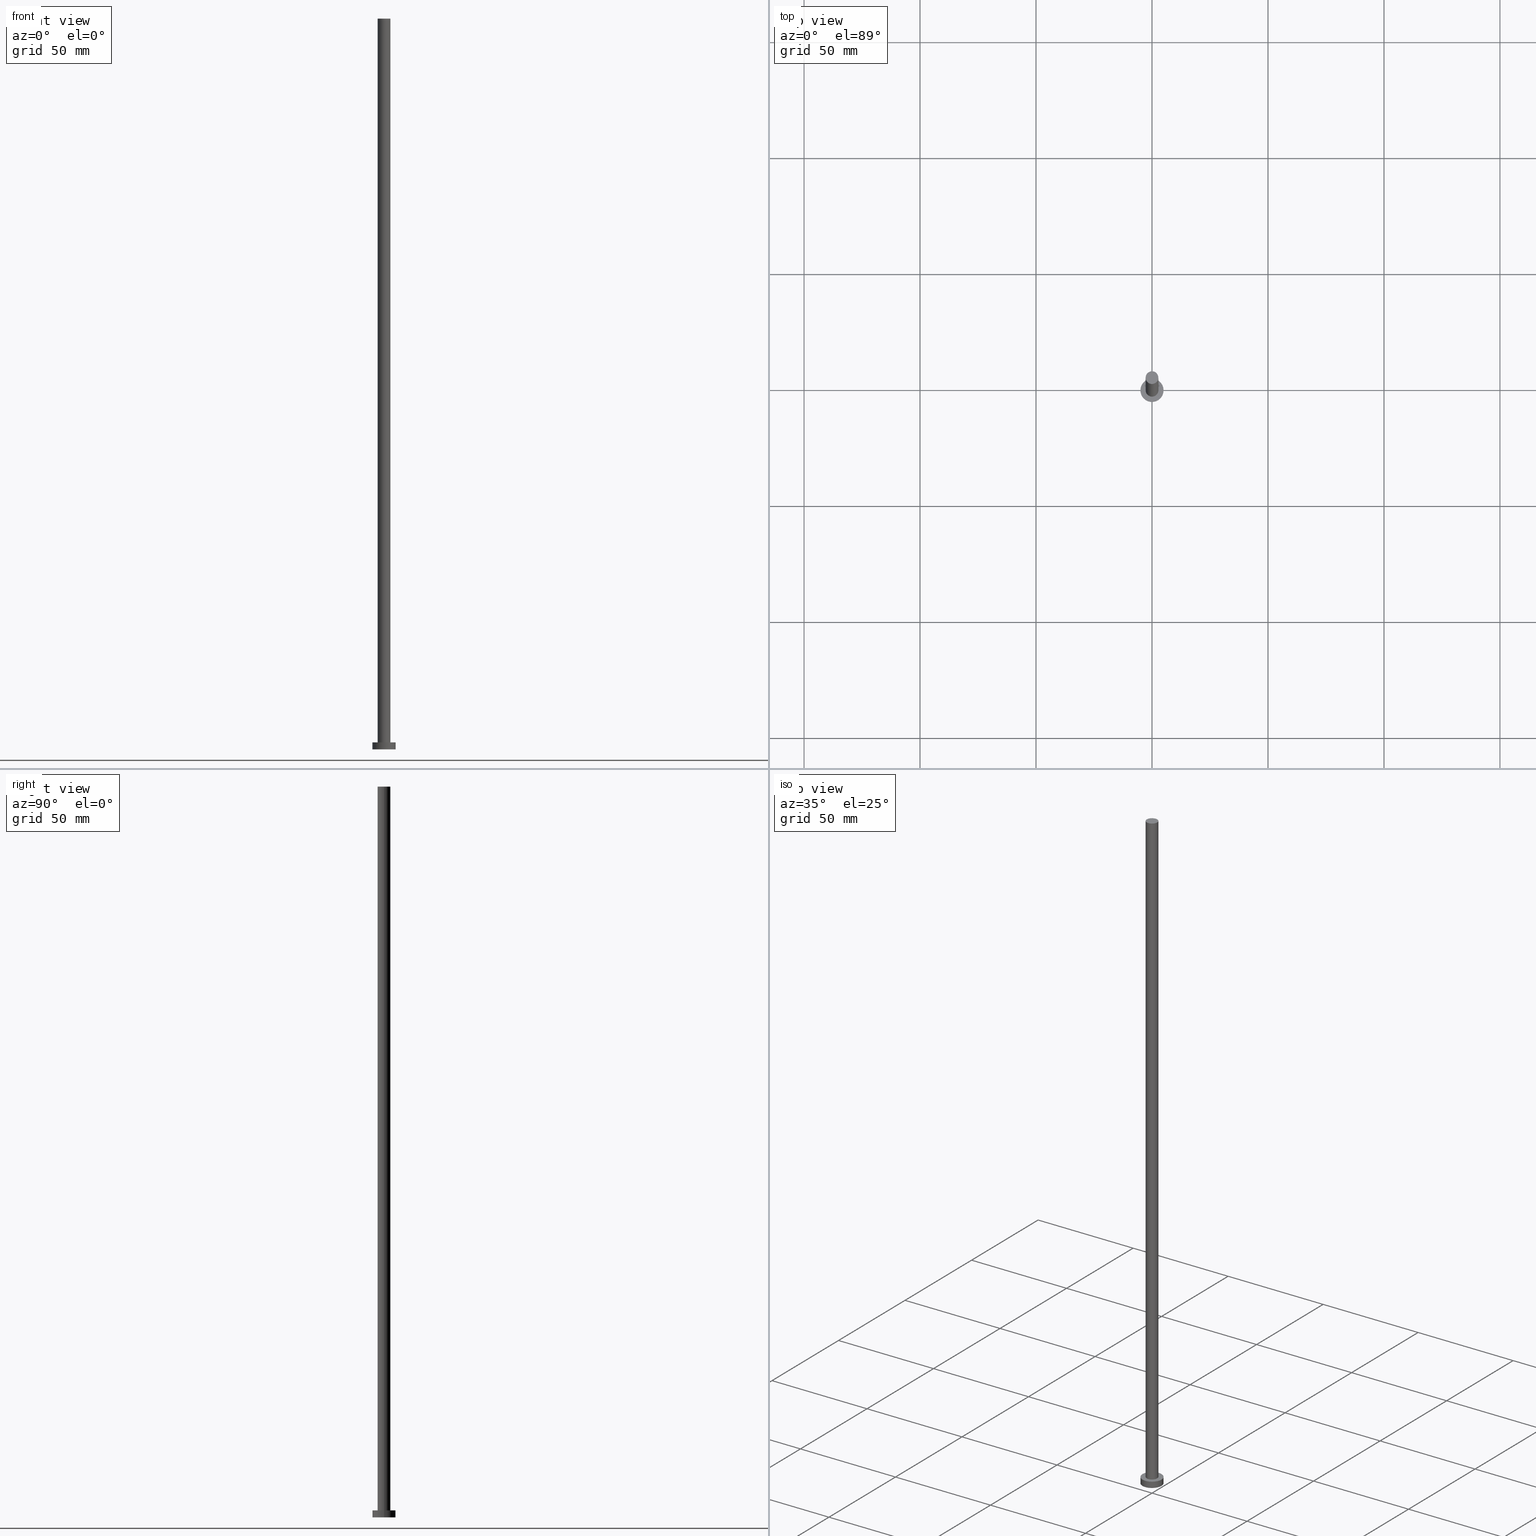
[diagram: canonical four-view strip — front | top / right | iso, engineering-drawing reading convention]
A machine part, canonical four-view strip (front | top / right | iso — engineering-drawing reading convention). The complete STEP part file that produces these views, byte-faithful:
ISO-10303-21;
HEADER;
FILE_DESCRIPTION (( 'STEP AP203' ),
    '1' );
FILE_NAME ('250e.STEP',
    '2023-02-13T15:23:35',
    ( '' ),
    ( '' ),
    'SwSTEP 2.0',
    'SolidWorks 2019',
    '' );
FILE_SCHEMA (( 'CONFIG_CONTROL_DESIGN' ));
ENDSEC;

DATA;
#1 = PRODUCT_RELATED_PRODUCT_CATEGORY ( 'detail', '', ( #173 ) ) ;
#2 = APPLICATION_PROTOCOL_DEFINITION ( 'international standard', 'config_control_design', 1994, #7 ) ;
#3 = EDGE_LOOP ( 'NONE', ( #6, #104 ) ) ;
#4 = AXIS2_PLACEMENT_3D ( 'NONE', #174, #47, #106 ) ;
#5 = ORIENTED_EDGE ( 'NONE', *, *, #97, .T. ) ;
#6 = ORIENTED_EDGE ( 'NONE', *, *, #120, .T. ) ;
#7 = APPLICATION_CONTEXT ( 'configuration controlled 3d designs of mechanical parts and assemblies' ) ;
#8 = LINE ( 'NONE', #129, #107 ) ;
#9 = CARTESIAN_POINT ( 'NONE',  ( 0.000000000000000000, 0.000000000000000000, 3.000000000000000000 ) ) ;
#10 = CARTESIAN_POINT ( 'NONE',  ( 0.000000000000000000, 0.000000000000000000, 3.000000000000000000 ) ) ;
#11 = ORIENTED_EDGE ( 'NONE', *, *, #28, .F. ) ;
#12 = CALENDAR_DATE ( 2023, 13, 2 ) ;
#13 = CYLINDRICAL_SURFACE ( 'NONE', #138, 5.000000000000000000 ) ;
#14 = CYLINDRICAL_SURFACE ( 'NONE', #41, 2.750000000000000000 ) ;
#15 = APPROVAL_ROLE ( '' ) ;
#16 = CALENDAR_DATE ( 2023, 13, 2 ) ;
#17 = LINE ( 'NONE', #57, #217 ) ;
#18 = ORIENTED_EDGE ( 'NONE', *, *, #112, .F. ) ;
#19 = EDGE_CURVE ( 'NONE', #186, #23, #108, .T. ) ;
#20 = ORIENTED_EDGE ( 'NONE', *, *, #19, .F. ) ;
#21 = CIRCLE ( 'NONE', #204, 5.000000000000000000 ) ;
#22 = DIRECTION ( 'NONE',  ( 0.000000000000000000, 0.000000000000000000, 1.000000000000000000 ) ) ;
#23 = VERTEX_POINT ( 'NONE', #147 ) ;
#24 = DIRECTION ( 'NONE',  ( 0.000000000000000000, 0.000000000000000000, 1.000000000000000000 ) ) ;
#25 = ORIENTED_EDGE ( 'NONE', *, *, #145, .T. ) ;
#26 = ORIENTED_EDGE ( 'NONE', *, *, #19, .T. ) ;
#27 = AXIS2_PLACEMENT_3D ( 'NONE', #10, #90, #179 ) ;
#28 = EDGE_CURVE ( 'NONE', #219, #144, #243, .T. ) ;
#29 = CARTESIAN_POINT ( 'NONE',  ( 5.000000000000000000, 6.123233995736766282E-16, 0.000000000000000000 ) ) ;
#30 = APPROVAL ( #33, 'NEUR�EN�' ) ;
#31 = FACE_BOUND ( 'NONE', #79, .T. ) ;
#32 = CARTESIAN_POINT ( 'NONE',  ( -2.750000000000000000, 0.000000000000000000, 315.0000000000000000 ) ) ;
#33 = APPROVAL_STATUS ( 'not_yet_approved' ) ;
#34 = CARTESIAN_POINT ( 'NONE',  ( 2.750000000000000000, 3.367778697655221012E-16, 3.000000000000000000 ) ) ;
#35 = PERSON_AND_ORGANIZATION_ROLE ( 'creator' ) ;
#36 = DIRECTION ( 'NONE',  ( -1.000000000000000000, 0.000000000000000000, 0.000000000000000000 ) ) ;
#37 = PERSON_AND_ORGANIZATION_ROLE ( 'creator' ) ;
#38 = ORIENTED_EDGE ( 'NONE', *, *, #133, .F. ) ;
#39 = ORIENTED_EDGE ( 'NONE', *, *, #112, .T. ) ;
#40 = CC_DESIGN_PERSON_AND_ORGANIZATION_ASSIGNMENT ( #234, #35, ( #156 ) ) ;
#41 = AXIS2_PLACEMENT_3D ( 'NONE', #166, #137, #36 ) ;
#42 = CIRCLE ( 'NONE', #71, 2.750000000000000000 ) ;
#43 = COORDINATED_UNIVERSAL_TIME_OFFSET ( 1, 0, .AHEAD. ) ;
#44 = ORIENTED_EDGE ( 'NONE', *, *, #248, .F. ) ;
#45 = DIRECTION ( 'NONE',  ( 1.000000000000000000, 0.000000000000000000, 0.000000000000000000 ) ) ;
#46 = APPLICATION_PROTOCOL_DEFINITION ( 'international standard', 'config_control_design', 1994, #150 ) ;
#47 = DIRECTION ( 'NONE',  ( 0.000000000000000000, 0.000000000000000000, 1.000000000000000000 ) ) ;
#48 = DIRECTION ( 'NONE',  ( -1.000000000000000000, 0.000000000000000000, 0.000000000000000000 ) ) ;
#49 = PERSON_AND_ORGANIZATION_ROLE ( 'design_owner' ) ;
#50 = DIRECTION ( 'NONE',  ( 0.000000000000000000, 0.000000000000000000, 1.000000000000000000 ) ) ;
#51 = CIRCLE ( 'NONE', #209, 5.000000000000000000 ) ;
#52 = CARTESIAN_POINT ( 'NONE',  ( 2.750000000000000000, 3.367778697655221012E-16, 315.0000000000000000 ) ) ;
#53 = FACE_OUTER_BOUND ( 'NONE', #62, .T. ) ;
#54 = ADVANCED_FACE ( 'NONE', ( #67 ), #69, .T. ) ;
#55 = PLANE ( 'NONE',  #155 ) ;
#56 = CC_DESIGN_PERSON_AND_ORGANIZATION_ASSIGNMENT ( #161, #201, ( #156 ) ) ;
#57 = CARTESIAN_POINT ( 'NONE',  ( 2.750000000000000000, 3.367778697655221012E-16, 315.0000000000000000 ) ) ;
#58 = CC_DESIGN_APPROVAL ( #30, ( #156 ) ) ;
#59 = EDGE_LOOP ( 'NONE', ( #18, #126, #5, #20 ) ) ;
#60 = DATE_TIME_ROLE ( 'classification_date' ) ;
#61 = COORDINATED_UNIVERSAL_TIME_OFFSET ( 1, 0, .AHEAD. ) ;
#62 = EDGE_LOOP ( 'NONE', ( #225, #177, #188, #38 ) ) ;
#63 = EDGE_CURVE ( 'NONE', #141, #144, #130, .T. ) ;
#64 = FACE_OUTER_BOUND ( 'NONE', #227, .T. ) ;
#65 = ORIENTED_EDGE ( 'NONE', *, *, #220, .F. ) ;
#66 = DIRECTION ( 'NONE',  ( -0.000000000000000000, -0.000000000000000000, -1.000000000000000000 ) ) ;
#67 = FACE_OUTER_BOUND ( 'NONE', #59, .T. ) ;
#68 = FACE_OUTER_BOUND ( 'NONE', #203, .T. ) ;
#69 = CYLINDRICAL_SURFACE ( 'NONE', #122, 2.750000000000000000 ) ;
#70 = VERTEX_POINT ( 'NONE', #52 ) ;
#71 = AXIS2_PLACEMENT_3D ( 'NONE', #9, #50, #195 ) ;
#72 = AXIS2_PLACEMENT_3D ( 'NONE', #171, #146, #152 ) ;
#73 =( GEOMETRIC_REPRESENTATION_CONTEXT ( 3 ) GLOBAL_UNCERTAINTY_ASSIGNED_CONTEXT ( ( #99 ) ) GLOBAL_UNIT_ASSIGNED_CONTEXT ( ( #117, #98, #241 ) ) REPRESENTATION_CONTEXT ( 'NONE', 'WORKASPACE' ) );
#74 = CIRCLE ( 'NONE', #27, 2.750000000000000000 ) ;
#75 = DATE_AND_TIME ( #253, #183 ) ;
#76 = COORDINATED_UNIVERSAL_TIME_OFFSET ( 1, 0, .AHEAD. ) ;
#77 = CARTESIAN_POINT ( 'NONE',  ( 0.000000000000000000, 0.000000000000000000, 0.000000000000000000 ) ) ;
#78 = PERSON_AND_ORGANIZATION_ROLE ( 'classification_officer' ) ;
#79 = EDGE_LOOP ( 'NONE', ( #100, #103 ) ) ;
#80 = PERSON_AND_ORGANIZATION ( #247, #213 ) ;
#81 = ORIENTED_EDGE ( 'NONE', *, *, #196, .T. ) ;
#82 = VECTOR ( 'NONE', #66, 1000.000000000000000 ) ;
#83 = CC_DESIGN_APPROVAL ( #178, ( #242 ) ) ;
#84 = CARTESIAN_POINT ( 'NONE',  ( -5.000000000000000000, 0.000000000000000000, 0.000000000000000000 ) ) ;
#85 = CARTESIAN_POINT ( 'NONE',  ( 5.000000000000000000, 6.123233995736766282E-16, 3.000000000000000000 ) ) ;
#86 = DIRECTION ( 'NONE',  ( -0.000000000000000000, -0.000000000000000000, -1.000000000000000000 ) ) ;
#87 = DIRECTION ( 'NONE',  ( 1.000000000000000000, 0.000000000000000000, 0.000000000000000000 ) ) ;
#88 = CIRCLE ( 'NONE', #4, 5.000000000000000000 ) ;
#89 = CARTESIAN_POINT ( 'NONE',  ( 0.000000000000000000, 0.000000000000000000, 0.000000000000000000 ) ) ;
#90 = DIRECTION ( 'NONE',  ( 0.000000000000000000, 0.000000000000000000, 1.000000000000000000 ) ) ;
#91 = DIRECTION ( 'NONE',  ( 0.000000000000000000, 0.000000000000000000, 1.000000000000000000 ) ) ;
#92 = LOCAL_TIME ( 16, 23, 35.00000000000000000, #211 ) ;
#93 = EDGE_CURVE ( 'NONE', #219, #169, #88, .T. ) ;
#94 = DIRECTION ( 'NONE',  ( 1.000000000000000000, 0.000000000000000000, -0.000000000000000000 ) ) ;
#95 = COORDINATED_UNIVERSAL_TIME_OFFSET ( 1, 0, .AHEAD. ) ;
#96 = AXIS2_PLACEMENT_3D ( 'NONE', #89, #124, #206 ) ;
#97 = EDGE_CURVE ( 'NONE', #180, #23, #42, .T. ) ;
#98 =( NAMED_UNIT ( * ) PLANE_ANGLE_UNIT ( ) SI_UNIT ( $, .RADIAN. ) );
#99 = UNCERTAINTY_MEASURE_WITH_UNIT (LENGTH_MEASURE( 1.000000000000000082E-05 ), #117, 'distance_accuracy_value', 'NONE');
#100 = ORIENTED_EDGE ( 'NONE', *, *, #145, .F. ) ;
#101 = LOCAL_TIME ( 16, 23, 35.00000000000000000, #61 ) ;
#102 = VECTOR ( 'NONE', #86, 1000.000000000000000 ) ;
#103 = ORIENTED_EDGE ( 'NONE', *, *, #97, .F. ) ;
#104 = ORIENTED_EDGE ( 'NONE', *, *, #93, .T. ) ;
#105 = CARTESIAN_POINT ( 'NONE',  ( 0.000000000000000000, 0.000000000000000000, 315.0000000000000000 ) ) ;
#106 = DIRECTION ( 'NONE',  ( 1.000000000000000000, 0.000000000000000000, 0.000000000000000000 ) ) ;
#107 = VECTOR ( 'NONE', #208, 1000.000000000000000 ) ;
#108 = LINE ( 'NONE', #172, #102 ) ;
#109 = MANIFOLD_SOLID_BREP ( 'P�idat vysunut�m3', #157 ) ;
#110 = PLANE ( 'NONE',  #189 ) ;
#111 = CARTESIAN_POINT ( 'NONE',  ( 0.000000000000000000, 0.000000000000000000, 3.000000000000000000 ) ) ;
#112 = EDGE_CURVE ( 'NONE', #70, #186, #238, .T. ) ;
#113 = DATE_AND_TIME ( #16, #101 ) ;
#114 = PRODUCT_DEFINITION_SHAPE ( 'NONE', 'NONE',  #228 ) ;
#115 = DIRECTION ( 'NONE',  ( 1.000000000000000000, 0.000000000000000000, 0.000000000000000000 ) ) ;
#116 = DATE_AND_TIME ( #218, #176 ) ;
#117 =( LENGTH_UNIT ( ) NAMED_UNIT ( * ) SI_UNIT ( .MILLI., .METRE. ) );
#118 = DESIGN_CONTEXT ( 'detailed design', #7, 'design' ) ;
#119 = ORIENTED_EDGE ( 'NONE', *, *, #63, .T. ) ;
#120 = EDGE_CURVE ( 'NONE', #169, #219, #21, .T. ) ;
#121 = DATE_AND_TIME ( #12, #92 ) ;
#122 = AXIS2_PLACEMENT_3D ( 'NONE', #105, #226, #48 ) ;
#123 = CYLINDRICAL_SURFACE ( 'NONE', #72, 5.000000000000000000 ) ;
#124 = DIRECTION ( 'NONE',  ( 0.000000000000000000, 0.000000000000000000, 1.000000000000000000 ) ) ;
#125 = CARTESIAN_POINT ( 'NONE',  ( 0.000000000000000000, 0.000000000000000000, 0.000000000000000000 ) ) ;
#126 = ORIENTED_EDGE ( 'NONE', *, *, #220, .T. ) ;
#127 = ADVANCED_FACE ( 'NONE', ( #68 ), #148, .F. ) ;
#128 = MECHANICAL_CONTEXT ( 'NONE', #150, 'mechanical' ) ;
#129 = CARTESIAN_POINT ( 'NONE',  ( -5.000000000000000000, 0.000000000000000000, 3.000000000000000000 ) ) ;
#130 = CIRCLE ( 'NONE', #244, 5.000000000000000000 ) ;
#131 = CARTESIAN_POINT ( 'NONE',  ( -5.000000000000000000, 0.000000000000000000, 3.000000000000000000 ) ) ;
#132 = CARTESIAN_POINT ( 'NONE',  ( 0.000000000000000000, 0.000000000000000000, 315.0000000000000000 ) ) ;
#133 = EDGE_CURVE ( 'NONE', #169, #141, #8, .T. ) ;
#134 = CC_DESIGN_APPROVAL ( #136, ( #228 ) ) ;
#135 = AXIS2_PLACEMENT_3D ( 'NONE', #153, #151, #193 ) ;
#136 = APPROVAL ( #143, 'NEUR�EN�' ) ;
#137 = DIRECTION ( 'NONE',  ( -0.000000000000000000, -0.000000000000000000, -1.000000000000000000 ) ) ;
#138 = AXIS2_PLACEMENT_3D ( 'NONE', #111, #198, #251 ) ;
#139 = ORIENTED_EDGE ( 'NONE', *, *, #120, .F. ) ;
#140 = PERSON_AND_ORGANIZATION ( #247, #213 ) ;
#141 = VERTEX_POINT ( 'NONE', #84 ) ;
#142 = CC_DESIGN_DATE_AND_TIME_ASSIGNMENT ( #113, #215, ( #228 ) ) ;
#143 = APPROVAL_STATUS ( 'not_yet_approved' ) ;
#144 = VERTEX_POINT ( 'NONE', #29 ) ;
#145 = EDGE_CURVE ( 'NONE', #23, #180, #74, .T. ) ;
#146 = DIRECTION ( 'NONE',  ( -0.000000000000000000, -0.000000000000000000, -1.000000000000000000 ) ) ;
#147 = CARTESIAN_POINT ( 'NONE',  ( -2.750000000000000000, 0.000000000000000000, 3.000000000000000000 ) ) ;
#148 = PLANE ( 'NONE',  #233 ) ;
#149 = SHAPE_DEFINITION_REPRESENTATION ( #114, #154 ) ;
#150 = APPLICATION_CONTEXT ( 'configuration controlled 3d designs of mechanical parts and assemblies' ) ;
#151 = DIRECTION ( 'NONE',  ( 0.000000000000000000, 0.000000000000000000, 1.000000000000000000 ) ) ;
#152 = DIRECTION ( 'NONE',  ( -1.000000000000000000, 0.000000000000000000, 0.000000000000000000 ) ) ;
#153 = CARTESIAN_POINT ( 'NONE',  ( 0.000000000000000000, 0.000000000000000000, 315.0000000000000000 ) ) ;
#154 = ADVANCED_BREP_SHAPE_REPRESENTATION ( '250e', ( #109, #96 ), #73 ) ;
#155 = AXIS2_PLACEMENT_3D ( 'NONE', #132, #212, #94 ) ;
#156 = PRODUCT_DEFINITION_FORMATION_WITH_SPECIFIED_SOURCE ( 'LIBOVOLN�', '', #173, .NOT_KNOWN. ) ;
#157 = CLOSED_SHELL ( 'NONE', ( #54, #182, #164, #170, #127, #192, #184 ) ) ;
#158 = CC_DESIGN_DATE_AND_TIME_ASSIGNMENT ( #116, #60, ( #242 ) ) ;
#159 = APPROVAL_DATE_TIME ( #75, #30 ) ;
#160 = CARTESIAN_POINT ( 'NONE',  ( 0.000000000000000000, 0.000000000000000000, 315.0000000000000000 ) ) ;
#161 = PERSON_AND_ORGANIZATION ( #247, #213 ) ;
#162 = DIRECTION ( 'NONE',  ( 0.000000000000000000, 0.000000000000000000, 1.000000000000000000 ) ) ;
#163 = CC_DESIGN_SECURITY_CLASSIFICATION ( #242, ( #156 ) ) ;
#164 = ADVANCED_FACE ( 'NONE', ( #64 ), #123, .T. ) ;
#165 = CC_DESIGN_PERSON_AND_ORGANIZATION_ASSIGNMENT ( #254, #78, ( #242 ) ) ;
#166 = CARTESIAN_POINT ( 'NONE',  ( 0.000000000000000000, 0.000000000000000000, 315.0000000000000000 ) ) ;
#167 = APPROVAL_DATE_TIME ( #205, #178 ) ;
#168 = PERSON_AND_ORGANIZATION ( #247, #213 ) ;
#169 = VERTEX_POINT ( 'NONE', #131 ) ;
#170 = ADVANCED_FACE ( 'NONE', ( #31, #210 ), #110, .T. ) ;
#171 = CARTESIAN_POINT ( 'NONE',  ( 0.000000000000000000, 0.000000000000000000, 3.000000000000000000 ) ) ;
#172 = CARTESIAN_POINT ( 'NONE',  ( -2.750000000000000000, 0.000000000000000000, 315.0000000000000000 ) ) ;
#173 = PRODUCT ( '250e', '250e', '', ( #128 ) ) ;
#174 = CARTESIAN_POINT ( 'NONE',  ( 0.000000000000000000, 0.000000000000000000, 3.000000000000000000 ) ) ;
#175 = APPROVAL_ROLE ( '' ) ;
#176 = LOCAL_TIME ( 16, 23, 35.00000000000000000, #76 ) ;
#177 = ORIENTED_EDGE ( 'NONE', *, *, #28, .T. ) ;
#178 = APPROVAL ( #221, 'NEUR�EN�' ) ;
#179 = DIRECTION ( 'NONE',  ( 1.000000000000000000, 0.000000000000000000, 0.000000000000000000 ) ) ;
#180 = VERTEX_POINT ( 'NONE', #34 ) ;
#181 = DIRECTION ( 'NONE',  ( 0.000000000000000000, 0.000000000000000000, 1.000000000000000000 ) ) ;
#182 = ADVANCED_FACE ( 'NONE', ( #53 ), #13, .T. ) ;
#183 = LOCAL_TIME ( 16, 23, 35.00000000000000000, #95 ) ;
#184 = ADVANCED_FACE ( 'NONE', ( #232 ), #55, .T. ) ;
#185 = SECURITY_CLASSIFICATION_LEVEL ( 'unclassified' ) ;
#186 = VERTEX_POINT ( 'NONE', #32 ) ;
#187 = CALENDAR_DATE ( 2023, 13, 2 ) ;
#188 = ORIENTED_EDGE ( 'NONE', *, *, #248, .T. ) ;
#189 = AXIS2_PLACEMENT_3D ( 'NONE', #216, #181, #214 ) ;
#190 = DIRECTION ( 'NONE',  ( 1.000000000000000000, 0.000000000000000000, -0.000000000000000000 ) ) ;
#191 = EDGE_LOOP ( 'NONE', ( #65, #249, #26, #25 ) ) ;
#192 = ADVANCED_FACE ( 'NONE', ( #199 ), #14, .T. ) ;
#193 = DIRECTION ( 'NONE',  ( 1.000000000000000000, 0.000000000000000000, 0.000000000000000000 ) ) ;
#194 = AXIS2_PLACEMENT_3D ( 'NONE', #160, #22, #115 ) ;
#195 = DIRECTION ( 'NONE',  ( 1.000000000000000000, 0.000000000000000000, 0.000000000000000000 ) ) ;
#196 = EDGE_CURVE ( 'NONE', #186, #70, #230, .T. ) ;
#197 = DIRECTION ( 'NONE',  ( 0.000000000000000000, 0.000000000000000000, 1.000000000000000000 ) ) ;
#198 = DIRECTION ( 'NONE',  ( -0.000000000000000000, -0.000000000000000000, -1.000000000000000000 ) ) ;
#199 = FACE_OUTER_BOUND ( 'NONE', #191, .T. ) ;
#200 = APPROVAL_PERSON_ORGANIZATION ( #140, #178, #175 ) ;
#201 = PERSON_AND_ORGANIZATION_ROLE ( 'design_supplier' ) ;
#202 = CARTESIAN_POINT ( 'NONE',  ( 5.000000000000000000, 6.123233995736766282E-16, 3.000000000000000000 ) ) ;
#203 = EDGE_LOOP ( 'NONE', ( #207, #44 ) ) ;
#204 = AXIS2_PLACEMENT_3D ( 'NONE', #246, #91, #87 ) ;
#205 = DATE_AND_TIME ( #187, #239 ) ;
#206 = DIRECTION ( 'NONE',  ( 1.000000000000000000, 0.000000000000000000, 0.000000000000000000 ) ) ;
#207 = ORIENTED_EDGE ( 'NONE', *, *, #63, .F. ) ;
#208 = DIRECTION ( 'NONE',  ( -0.000000000000000000, -0.000000000000000000, -1.000000000000000000 ) ) ;
#209 = AXIS2_PLACEMENT_3D ( 'NONE', #77, #162, #236 ) ;
#210 = FACE_OUTER_BOUND ( 'NONE', #3, .T. ) ;
#211 = COORDINATED_UNIVERSAL_TIME_OFFSET ( 1, 0, .AHEAD. ) ;
#212 = DIRECTION ( 'NONE',  ( 0.000000000000000000, 0.000000000000000000, 1.000000000000000000 ) ) ;
#213 = ORGANIZATION ( 'NEUR�EN�', 'NEUR�EN�', '' ) ;
#214 = DIRECTION ( 'NONE',  ( 1.000000000000000000, 0.000000000000000000, -0.000000000000000000 ) ) ;
#215 = DATE_TIME_ROLE ( 'creation_date' ) ;
#216 = CARTESIAN_POINT ( 'NONE',  ( 0.000000000000000000, 0.000000000000000000, 3.000000000000000000 ) ) ;
#217 = VECTOR ( 'NONE', #255, 1000.000000000000000 ) ;
#218 = CALENDAR_DATE ( 2023, 13, 2 ) ;
#219 = VERTEX_POINT ( 'NONE', #202 ) ;
#220 = EDGE_CURVE ( 'NONE', #70, #180, #17, .T. ) ;
#221 = APPROVAL_STATUS ( 'not_yet_approved' ) ;
#222 = APPROVAL_PERSON_ORGANIZATION ( #168, #136, #223 ) ;
#223 = APPROVAL_ROLE ( '' ) ;
#224 = ORIENTED_EDGE ( 'NONE', *, *, #133, .T. ) ;
#225 = ORIENTED_EDGE ( 'NONE', *, *, #93, .F. ) ;
#226 = DIRECTION ( 'NONE',  ( -0.000000000000000000, -0.000000000000000000, -1.000000000000000000 ) ) ;
#227 = EDGE_LOOP ( 'NONE', ( #11, #139, #224, #119 ) ) ;
#228 = PRODUCT_DEFINITION ( 'NEZN�M�', '', #156, #118 ) ;
#229 = PERSON_AND_ORGANIZATION ( #247, #213 ) ;
#230 = CIRCLE ( 'NONE', #194, 2.750000000000000000 ) ;
#231 = CARTESIAN_POINT ( 'NONE',  ( 0.000000000000000000, 0.000000000000000000, 0.000000000000000000 ) ) ;
#232 = FACE_OUTER_BOUND ( 'NONE', #237, .T. ) ;
#233 = AXIS2_PLACEMENT_3D ( 'NONE', #125, #24, #190 ) ;
#234 = PERSON_AND_ORGANIZATION ( #247, #213 ) ;
#235 = APPROVAL_DATE_TIME ( #121, #136 ) ;
#236 = DIRECTION ( 'NONE',  ( 1.000000000000000000, 0.000000000000000000, 0.000000000000000000 ) ) ;
#237 = EDGE_LOOP ( 'NONE', ( #81, #39 ) ) ;
#238 = CIRCLE ( 'NONE', #135, 2.750000000000000000 ) ;
#239 = LOCAL_TIME ( 16, 23, 35.00000000000000000, #43 ) ;
#240 = PERSON_AND_ORGANIZATION ( #247, #213 ) ;
#241 =( NAMED_UNIT ( * ) SI_UNIT ( $, .STERADIAN. ) SOLID_ANGLE_UNIT ( ) );
#242 = SECURITY_CLASSIFICATION ( '', '', #185 ) ;
#243 = LINE ( 'NONE', #85, #82 ) ;
#244 = AXIS2_PLACEMENT_3D ( 'NONE', #231, #197, #45 ) ;
#245 = CC_DESIGN_PERSON_AND_ORGANIZATION_ASSIGNMENT ( #229, #49, ( #173 ) ) ;
#246 = CARTESIAN_POINT ( 'NONE',  ( 0.000000000000000000, 0.000000000000000000, 3.000000000000000000 ) ) ;
#247 = PERSON ( 'NEUR�EN�', 'NEUR�EN�', 'NEUR�EN�', ('NEUR�EN�'), ('NEUR�EN�'), ('NEUR�EN�') ) ;
#248 = EDGE_CURVE ( 'NONE', #144, #141, #51, .T. ) ;
#249 = ORIENTED_EDGE ( 'NONE', *, *, #196, .F. ) ;
#250 = APPROVAL_PERSON_ORGANIZATION ( #240, #30, #15 ) ;
#251 = DIRECTION ( 'NONE',  ( -1.000000000000000000, 0.000000000000000000, 0.000000000000000000 ) ) ;
#252 = CC_DESIGN_PERSON_AND_ORGANIZATION_ASSIGNMENT ( #80, #37, ( #228 ) ) ;
#253 = CALENDAR_DATE ( 2023, 13, 2 ) ;
#254 = PERSON_AND_ORGANIZATION ( #247, #213 ) ;
#255 = DIRECTION ( 'NONE',  ( -0.000000000000000000, -0.000000000000000000, -1.000000000000000000 ) ) ;
ENDSEC;
END-ISO-10303-21;
